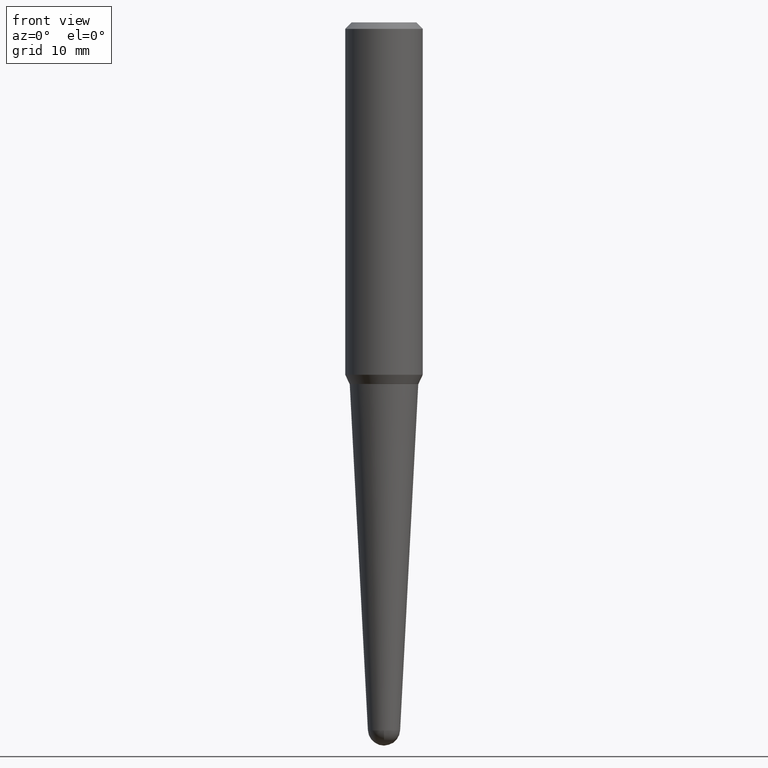
[diagram: clean part render]
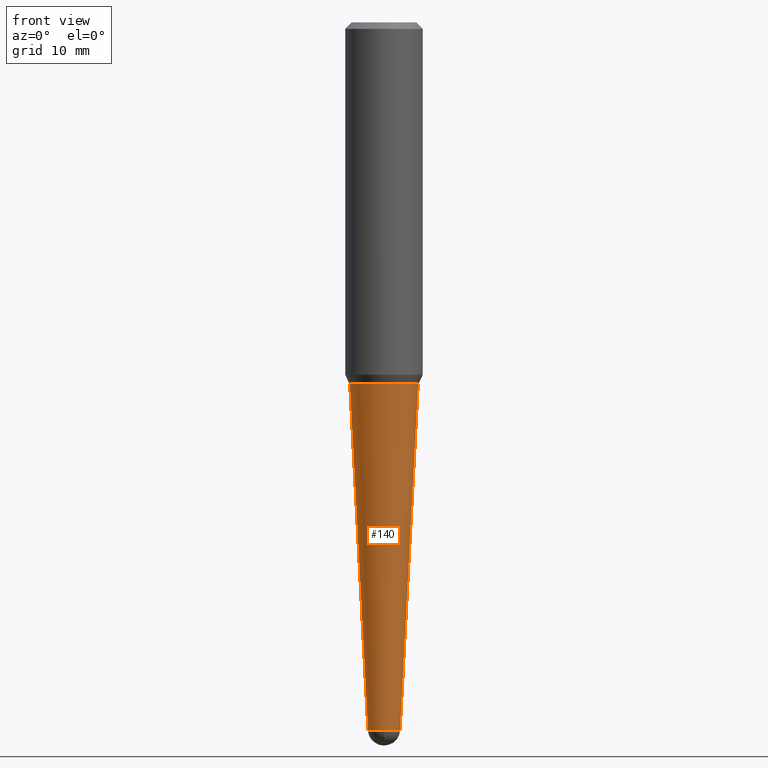
[diagram: same view with one face highlighted and labeled with its STEP entity id]
A machine part, front view. The second image highlights one B-rep face of the part: STEP entity #140.
In plain terms, the highlighted conical surface has half-angle 3 deg.
Its self-contained STEP definition (entity closure, byte-faithful):
#23 = VECTOR ( 'NONE', #283, 39.37007874015748854 ) ;
#41 = EDGE_LOOP ( 'NONE', ( #194, #226, #261, #196, #164 ) ) ;
#42 = AXIS2_PLACEMENT_3D ( 'NONE', #104, #141, #397 ) ;
#43 = VERTEX_POINT ( 'NONE', #321 ) ;
#48 = EDGE_CURVE ( 'NONE', #296, #426, #443, .T. ) ;
#51 = DIRECTION ( 'NONE',  ( 0.05233595624294386239, 3.121236355867708811E-15, 0.9986295347545738332 ) ) ;
#64 = AXIS2_PLACEMENT_3D ( 'NONE', #373, #213, #66 ) ;
#65 = CIRCLE ( 'NONE', #358, 0.1658277464057546224 ) ;
#66 = DIRECTION ( 'NONE',  ( 1.000000000000000000, -6.982962677686269866E-15, 0.000000000000000000 ) ) ;
#68 = FACE_OUTER_BOUND ( 'NONE', #41, .T. ) ;
#97 = CARTESIAN_POINT ( 'NONE',  ( -0.1658277464057546224, -4.931815337014733979E-15, -1.750000000000000000 ) ) ;
#104 = CARTESIAN_POINT ( 'NONE',  ( 8.378145410457613452E-29, -1.196177120752549174E-14, -3.425987438182573896 ) ) ;
#107 = DIRECTION ( 'NONE',  ( 1.000000000000000000, -6.982962677686269866E-15, 0.000000000000000000 ) ) ;
#110 = CIRCLE ( 'NONE', #42, 0.07799296666433258585 ) ;
#119 = EDGE_CURVE ( 'NONE', #121, #296, #110, .T. ) ;
#121 = VERTEX_POINT ( 'NONE', #434 ) ;
#140 = ADVANCED_FACE ( 'NONE', ( #68 ), #149, .T. ) ;
#141 = DIRECTION ( 'NONE',  ( -2.445468806185136597E-29, 3.491481338843145583E-15, 1.000000000000000000 ) ) ;
#144 = CARTESIAN_POINT ( 'NONE',  ( 8.378145410457613452E-29, -1.196177120752549174E-14, -3.425987438182573896 ) ) ;
#149 = CONICAL_SURFACE ( 'NONE', #218, 0.07799296666433258585, 0.05235987755982991071 ) ;
#158 = CARTESIAN_POINT ( 'NONE',  ( 0.07799296666433258585, -1.250639318286455540E-14, -3.425987438182573896 ) ) ;
#164 = ORIENTED_EDGE ( 'NONE', *, *, #329, .F. ) ;
#194 = ORIENTED_EDGE ( 'NONE', *, *, #433, .F. ) ;
#196 = ORIENTED_EDGE ( 'NONE', *, *, #216, .T. ) ;
#203 = CARTESIAN_POINT ( 'NONE',  ( 0.07799296666433258585, -9.887227244958132819E-15, -3.425987438182573896 ) ) ;
#213 = DIRECTION ( 'NONE',  ( -2.445468806185136597E-29, 3.491481338843145583E-15, 1.000000000000000000 ) ) ;
#216 = EDGE_CURVE ( 'NONE', #426, #43, #310, .T. ) ;
#218 = AXIS2_PLACEMENT_3D ( 'NONE', #144, #445, #107 ) ;
#226 = ORIENTED_EDGE ( 'NONE', *, *, #119, .T. ) ;
#261 = ORIENTED_EDGE ( 'NONE', *, *, #48, .T. ) ;
#271 = DIRECTION ( 'NONE',  ( 1.000000000000000000, -6.982962677686265922E-15, 0.000000000000000000 ) ) ;
#283 = DIRECTION ( 'NONE',  ( -0.05233595624294386239, 3.858565720288030357E-15, 0.9986295347545738332 ) ) ;
#296 = VERTEX_POINT ( 'NONE', #450 ) ;
#310 = LINE ( 'NONE', #158, #405 ) ;
#318 = CARTESIAN_POINT ( 'NONE',  ( -0.07799296666433258585, -1.140759784848827963E-14, -3.425987438182573896 ) ) ;
#321 = CARTESIAN_POINT ( 'NONE',  ( 0.1658277464057546224, -7.268061307051711819E-15, -1.750000000000000000 ) ) ;
#329 = EDGE_CURVE ( 'NONE', #408, #43, #65, .T. ) ;
#354 = LINE ( 'NONE', #318, #23 ) ;
#358 = AXIS2_PLACEMENT_3D ( 'NONE', #381, #420, #271 ) ;
#373 = CARTESIAN_POINT ( 'NONE',  ( 8.378145410457613452E-29, -1.196177120752549174E-14, -3.425987438182573896 ) ) ;
#381 = CARTESIAN_POINT ( 'NONE',  ( 4.279570410823988484E-29, -6.110092342975504671E-15, -1.750000000000000000 ) ) ;
#397 = DIRECTION ( 'NONE',  ( 1.000000000000000000, -6.982962677686269866E-15, 0.000000000000000000 ) ) ;
#405 = VECTOR ( 'NONE', #51, 39.37007874015748854 ) ;
#408 = VERTEX_POINT ( 'NONE', #97 ) ;
#420 = DIRECTION ( 'NONE',  ( -2.445468806185136597E-29, 3.491481338843145583E-15, 1.000000000000000000 ) ) ;
#426 = VERTEX_POINT ( 'NONE', #203 ) ;
#433 = EDGE_CURVE ( 'NONE', #121, #408, #354, .T. ) ;
#434 = CARTESIAN_POINT ( 'NONE',  ( -0.07799296666433258585, -8.169706592751506412E-15, -3.425987438182573896 ) ) ;
#443 = CIRCLE ( 'NONE', #64, 0.07799296666433258585 ) ;
#445 = DIRECTION ( 'NONE',  ( -2.445468806185136597E-29, 3.491481338843145583E-15, 1.000000000000000000 ) ) ;
#450 = CARTESIAN_POINT ( 'NONE',  ( -5.541733590371248362E-16, -0.07799296666434411829, -3.425987438182573896 ) ) ;